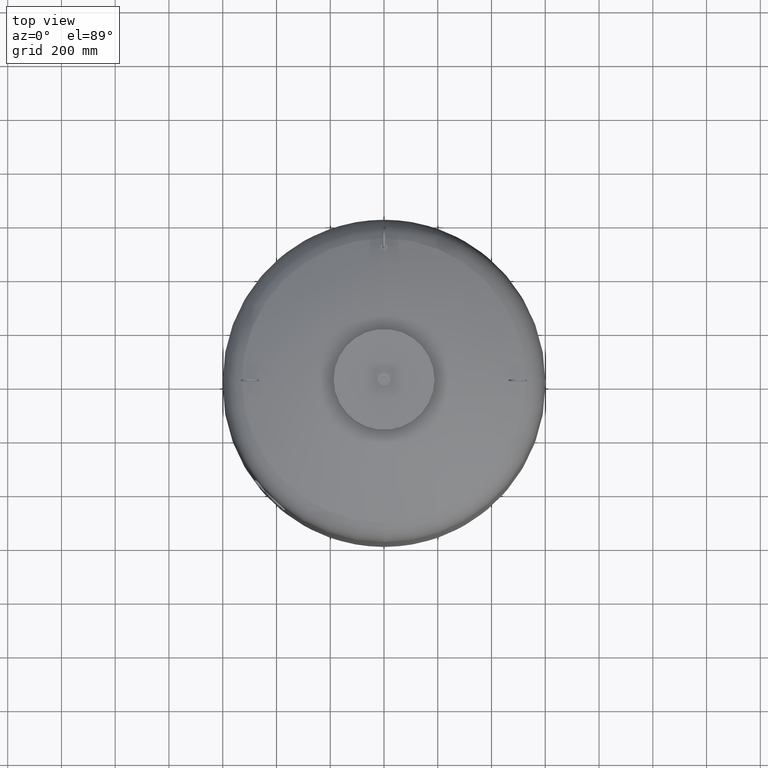
[diagram: clean part render]
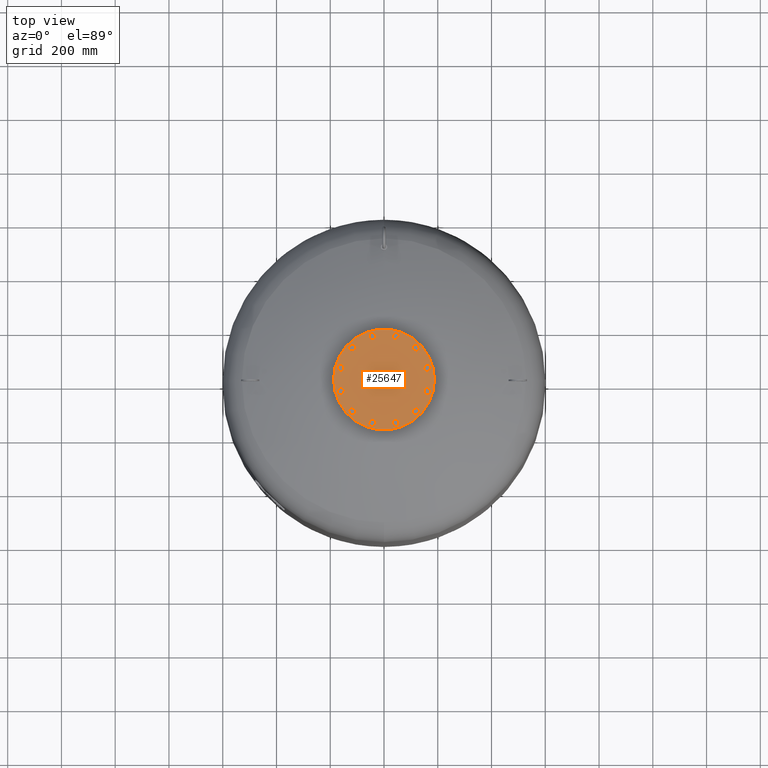
[diagram: same view with one face highlighted and labeled with its STEP entity id]
A machine part, top view. The second image highlights one B-rep face of the part: STEP entity #25647.
In plain terms, the highlighted planar face has unit normal (0, 0, 1).
Its self-contained STEP definition (entity closure, byte-faithful):
#17885=CARTESIAN_POINT('',(-187.500000000000000,0.0,2020.0));
#17886=VERTEX_POINT('',#17885);
#17902=CARTESIAN_POINT('',(187.500000000000000,-2.296137E-014,2020.0));
#17903=VERTEX_POINT('',#17902);
#17910=CARTESIAN_POINT('',(0.0,0.0,2020.0));
#17911=DIRECTION('',(0.0,0.0,-1.0));
#17912=DIRECTION('',(-1.0,0.0,0.0));
#17913=AXIS2_PLACEMENT_3D('',#17910,#17911,#17912);
#17914=CIRCLE('',#17913,187.500000000000000);
#17915=EDGE_CURVE('',#17903,#17886,#17914,.T.);
#23141=CARTESIAN_POINT('',(157.729139400922860,30.104983413641008,2020.0));
#23142=VERTEX_POINT('',#23141);
#23143=CARTESIAN_POINT('',(148.288440171855850,40.247625971983268,2020.0));
#23144=VERTEX_POINT('',#23143);
#23145=CARTESIAN_POINT('',(157.729139400922860,30.104983413641008,2020.0));
#23146=DIRECTION('',(-0.681323780155013,0.731982176419128,0.0));
#23147=VECTOR('',#23146,13.856406460551090);
#23148=LINE('',#23145,#23147);
#23149=EDGE_CURVE('',#23142,#23144,#23148,.T.);
#23181=CARTESIAN_POINT('',(171.233275132485970,33.209547496330110,2020.0));
#23182=VERTEX_POINT('',#23181);
#23183=CARTESIAN_POINT('',(171.233275132485970,33.209547496330110,2020.0));
#23184=DIRECTION('',(-0.974577049973894,-0.224052613607123,0.0));
#23185=VECTOR('',#23184,13.856406460551119);
#23186=LINE('',#23183,#23185);
#23187=EDGE_CURVE('',#23182,#23142,#23186,.T.);
#23212=CARTESIAN_POINT('',(175.296711634982050,46.456754137361422,2020.0));
#23213=VERTEX_POINT('',#23212);
#23214=CARTESIAN_POINT('',(175.296711634982050,46.456754137361422,2020.0));
#23215=DIRECTION('',(-0.293253269818881,-0.956034790026249,0.0));
#23216=VECTOR('',#23215,13.856406460551076);
#23217=LINE('',#23214,#23216);
#23218=EDGE_CURVE('',#23213,#23182,#23217,.T.);
#23243=CARTESIAN_POINT('',(152.351876674351930,53.494832613014587,2020.0));
#23244=VERTEX_POINT('',#23243);
#23245=CARTESIAN_POINT('',(148.288440171855850,40.247625971983268,2020.0));
#23246=DIRECTION('',(0.293253269818881,0.956034790026249,0.0));
#23247=VECTOR('',#23246,13.856406460551083);
#23248=LINE('',#23245,#23247);
#23249=EDGE_CURVE('',#23144,#23244,#23248,.T.);
#23274=CARTESIAN_POINT('',(165.856012405915040,56.599396695703689,2020.0));
#23275=VERTEX_POINT('',#23274);
#23276=CARTESIAN_POINT('',(152.351876674351930,53.494832613014587,2020.0));
#23277=DIRECTION('',(0.974577049973894,0.224052613607123,0.0));
#23278=VECTOR('',#23277,13.856406460551119);
#23279=LINE('',#23276,#23278);
#23280=EDGE_CURVE('',#23244,#23275,#23279,.T.);
#23305=CARTESIAN_POINT('',(165.856012405915040,56.599396695703689,2020.0));
#23306=DIRECTION('',(0.681323780155012,-0.731982176419129,0.0));
#23307=VECTOR('',#23306,13.856406460551096);
#23308=LINE('',#23305,#23307);
#23309=EDGE_CURVE('',#23275,#23213,#23308,.T.);
#23341=CARTESIAN_POINT('',(121.544949931435720,104.936250117183760,2020.0));
#23342=VERTEX_POINT('',#23341);
#23343=CARTESIAN_POINT('',(108.297743290404380,108.999686619679820,2020.0));
#23344=VERTEX_POINT('',#23343);
#23345=CARTESIAN_POINT('',(121.544949931435720,104.936250117183760,2020.0));
#23346=DIRECTION('',(-0.956034790026250,0.293253269818880,0.0));
#23347=VECTOR('',#23346,13.856406460551101);
#23348=LINE('',#23345,#23347);
#23349=EDGE_CURVE('',#23342,#23344,#23348,.T.);
#23381=CARTESIAN_POINT('',(131.687592489777960,114.376949346250780,2020.0));
#23382=VERTEX_POINT('',#23381);
#23383=CARTESIAN_POINT('',(131.687592489777960,114.376949346250780,2020.0));
#23384=DIRECTION('',(-0.731982176419127,-0.681323780155014,0.0));
#23385=VECTOR('',#23384,13.856406460551080);
#23386=LINE('',#23383,#23385);
#23387=EDGE_CURVE('',#23382,#23342,#23386,.T.);
#23412=CARTESIAN_POINT('',(128.583028407088880,127.881085077813880,2020.0));
#23413=VERTEX_POINT('',#23412);
#23414=CARTESIAN_POINT('',(128.583028407088880,127.881085077813880,2020.0));
#23415=DIRECTION('',(0.224052613607122,-0.974577049973894,0.0));
#23416=VECTOR('',#23415,13.856406460551099);
#23417=LINE('',#23414,#23416);
#23418=EDGE_CURVE('',#23413,#23382,#23417,.T.);
#23443=CARTESIAN_POINT('',(105.193179207715300,122.503822351242900,2020.0));
#23444=VERTEX_POINT('',#23443);
#23445=CARTESIAN_POINT('',(108.297743290404380,108.999686619679820,2020.0));
#23446=DIRECTION('',(-0.224052613607122,0.974577049973894,0.0));
#23447=VECTOR('',#23446,13.856406460551087);
#23448=LINE('',#23445,#23447);
#23449=EDGE_CURVE('',#23344,#23444,#23448,.T.);
#23474=CARTESIAN_POINT('',(115.335821766057560,131.944521580309950,2020.0));
#23475=VERTEX_POINT('',#23474);
#23476=CARTESIAN_POINT('',(105.193179207715300,122.503822351242900,2020.0));
#23477=DIRECTION('',(0.731982176419127,0.681323780155014,0.0));
#23478=VECTOR('',#23477,13.856406460551121);
#23479=LINE('',#23476,#23478);
#23480=EDGE_CURVE('',#23444,#23475,#23479,.T.);
#23505=CARTESIAN_POINT('',(115.335821766057560,131.944521580309950,2020.0));
#23506=DIRECTION('',(0.956034790026249,-0.293253269818881,0.0));
#23507=VECTOR('',#23506,13.856406460551076);
#23508=LINE('',#23505,#23507);
#23509=EDGE_CURVE('',#23475,#23413,#23508,.T.);
#23541=CARTESIAN_POINT('',(52.792889283739193,151.649933345076730,2020.0));
#23542=VERTEX_POINT('',#23541);
#23543=CARTESIAN_POINT('',(39.288753552176118,148.545369262387680,2020.0));
#23544=VERTEX_POINT('',#23543);
#23545=CARTESIAN_POINT('',(52.792889283739193,151.649933345076730,2020.0));
#23546=DIRECTION('',(-0.974577049973894,-0.224052613607120,0.0));
#23547=VECTOR('',#23546,13.856406460551073);
#23548=LINE('',#23545,#23547);
#23549=EDGE_CURVE('',#23542,#23544,#23548,.T.);
#23581=CARTESIAN_POINT('',(56.856325786235274,164.897139986108100,2020.0));
#23582=VERTEX_POINT('',#23581);
#23583=CARTESIAN_POINT('',(56.856325786235274,164.897139986108100,2020.0));
#23584=DIRECTION('',(-0.293253269818881,-0.956034790026249,0.0));
#23585=VECTOR('',#23584,13.856406460551133);
#23586=LINE('',#23583,#23585);
#23587=EDGE_CURVE('',#23582,#23542,#23586,.T.);
#23612=CARTESIAN_POINT('',(47.415626557168267,175.039782544450330,2020.0));
#23613=VERTEX_POINT('',#23612);
#23614=CARTESIAN_POINT('',(47.415626557168267,175.039782544450330,2020.0));
#23615=DIRECTION('',(0.681323780155014,-0.731982176419128,0.0));
#23616=VECTOR('',#23615,13.856406460551069);
#23617=LINE('',#23614,#23616);
#23618=EDGE_CURVE('',#23613,#23582,#23617,.T.);
#23643=CARTESIAN_POINT('',(29.848054323109103,158.688011820729910,2020.0));
#23644=VERTEX_POINT('',#23643);
#23645=CARTESIAN_POINT('',(39.288753552176118,148.545369262387680,2020.0));
#23646=DIRECTION('',(-0.681323780155014,0.731982176419127,0.0));
#23647=VECTOR('',#23646,13.856406460551076);
#23648=LINE('',#23645,#23647);
#23649=EDGE_CURVE('',#23544,#23644,#23648,.T.);
#23674=CARTESIAN_POINT('',(33.911490825605156,171.935218461761250,2020.0));
#23675=VERTEX_POINT('',#23674);
#23676=CARTESIAN_POINT('',(29.848054323109103,158.688011820729910,2020.0));
#23677=DIRECTION('',(0.293253269818879,0.956034790026250,0.0));
#23678=VECTOR('',#23677,13.856406460551097);
#23679=LINE('',#23676,#23678);
#23680=EDGE_CURVE('',#23644,#23675,#23679,.T.);
#23705=CARTESIAN_POINT('',(33.911490825605156,171.935218461761250,2020.0));
#23706=DIRECTION('',(0.974577049973894,0.224052613607121,0.0));
#23707=VECTOR('',#23706,13.856406460551113);
#23708=LINE('',#23705,#23707);
#23709=EDGE_CURVE('',#23675,#23613,#23708,.T.);
#23741=CARTESIAN_POINT('',(-30.104983413641008,157.729139400922860,2020.0));
#23742=VERTEX_POINT('',#23741);
#23743=CARTESIAN_POINT('',(-40.247625971983268,148.288440171855850,2020.0));
#23744=VERTEX_POINT('',#23743);
#23745=CARTESIAN_POINT('',(-30.104983413641008,157.729139400922860,2020.0));
#23746=DIRECTION('',(-0.731982176419128,-0.681323780155013,0.0));
#23747=VECTOR('',#23746,13.856406460551090);
#23748=LINE('',#23745,#23747);
#23749=EDGE_CURVE('',#23742,#23744,#23748,.T.);
#23781=CARTESIAN_POINT('',(-33.209547496330110,171.233275132485970,2020.0));
#23782=VERTEX_POINT('',#23781);
#23783=CARTESIAN_POINT('',(-33.209547496330110,171.233275132485970,2020.0));
#23784=DIRECTION('',(0.224052613607123,-0.974577049973894,0.0));
#23785=VECTOR('',#23784,13.856406460551119);
#23786=LINE('',#23783,#23785);
#23787=EDGE_CURVE('',#23782,#23742,#23786,.T.);
#23812=CARTESIAN_POINT('',(-46.456754137361422,175.296711634982050,2020.0));
#23813=VERTEX_POINT('',#23812);
#23814=CARTESIAN_POINT('',(-46.456754137361422,175.296711634982050,2020.0));
#23815=DIRECTION('',(0.956034790026249,-0.293253269818881,0.0));
#23816=VECTOR('',#23815,13.856406460551076);
#23817=LINE('',#23814,#23816);
#23818=EDGE_CURVE('',#23813,#23782,#23817,.T.);
#23843=CARTESIAN_POINT('',(-53.494832613014587,152.351876674351930,2020.0));
#23844=VERTEX_POINT('',#23843);
#23845=CARTESIAN_POINT('',(-40.247625971983268,148.288440171855850,2020.0));
#23846=DIRECTION('',(-0.956034790026249,0.293253269818881,0.0));
#23847=VECTOR('',#23846,13.856406460551083);
#23848=LINE('',#23845,#23847);
#23849=EDGE_CURVE('',#23744,#23844,#23848,.T.);
#23874=CARTESIAN_POINT('',(-56.599396695703689,165.856012405915040,2020.0));
#23875=VERTEX_POINT('',#23874);
#23876=CARTESIAN_POINT('',(-53.494832613014587,152.351876674351930,2020.0));
#23877=DIRECTION('',(-0.224052613607123,0.974577049973894,0.0));
#23878=VECTOR('',#23877,13.856406460551119);
#23879=LINE('',#23876,#23878);
#23880=EDGE_CURVE('',#23844,#23875,#23879,.T.);
#23905=CARTESIAN_POINT('',(-56.599396695703689,165.856012405915040,2020.0));
#23906=DIRECTION('',(0.731982176419129,0.681323780155012,0.0));
#23907=VECTOR('',#23906,13.856406460551096);
#23908=LINE('',#23905,#23907);
#23909=EDGE_CURVE('',#23875,#23813,#23908,.T.);
#23941=CARTESIAN_POINT('',(-104.936250117183700,121.544949931435750,2020.0));
#23942=VERTEX_POINT('',#23941);
#23943=CARTESIAN_POINT('',(-108.999686619679760,108.297743290404440,2020.0));
#23944=VERTEX_POINT('',#23943);
#23945=CARTESIAN_POINT('',(-104.936250117183700,121.544949931435750,2020.0));
#23946=DIRECTION('',(-0.293253269818880,-0.956034790026249,0.0));
#23947=VECTOR('',#23946,13.856406460551073);
#23948=LINE('',#23945,#23947);
#23949=EDGE_CURVE('',#23942,#23944,#23948,.T.);
#23981=CARTESIAN_POINT('',(-114.376949346250730,131.687592489778010,2020.0));
#23982=VERTEX_POINT('',#23981);
#23983=CARTESIAN_POINT('',(-114.376949346250730,131.687592489778010,2020.0));
#23984=DIRECTION('',(0.681323780155013,-0.731982176419128,0.0));
#23985=VECTOR('',#23984,13.856406460551101);
#23986=LINE('',#23983,#23985);
#23987=EDGE_CURVE('',#23982,#23942,#23986,.T.);
#24012=CARTESIAN_POINT('',(-127.881085077813810,128.583028407088930,2020.0));
#24013=VERTEX_POINT('',#24012);
#24014=CARTESIAN_POINT('',(-127.881085077813810,128.583028407088930,2020.0));
#24015=DIRECTION('',(0.974577049973894,0.224052613607122,0.0));
#24016=VECTOR('',#24015,13.856406460551087);
#24017=LINE('',#24014,#24016);
#24018=EDGE_CURVE('',#24013,#23982,#24017,.T.);
#24043=CARTESIAN_POINT('',(-122.503822351242850,105.193179207715360,2020.0));
#24044=VERTEX_POINT('',#24043);
#24045=CARTESIAN_POINT('',(-108.999686619679760,108.297743290404440,2020.0));
#24046=DIRECTION('',(-0.974577049973894,-0.224052613607122,0.0));
#24047=VECTOR('',#24046,13.856406460551087);
#24048=LINE('',#24045,#24047);
#24049=EDGE_CURVE('',#23944,#24044,#24048,.T.);
#24074=CARTESIAN_POINT('',(-131.944521580309900,115.335821766057620,2020.0));
#24075=VERTEX_POINT('',#24074);
#24076=CARTESIAN_POINT('',(-122.503822351242850,105.193179207715360,2020.0));
#24077=DIRECTION('',(-0.681323780155014,0.731982176419127,0.0));
#24078=VECTOR('',#24077,13.856406460551121);
#24079=LINE('',#24076,#24078);
#24080=EDGE_CURVE('',#24044,#24075,#24079,.T.);
#24105=CARTESIAN_POINT('',(-131.944521580309900,115.335821766057620,2020.0));
#24106=DIRECTION('',(0.293253269818882,0.956034790026249,0.0));
#24107=VECTOR('',#24106,13.856406460551081);
#24108=LINE('',#24105,#24107);
#24109=EDGE_CURVE('',#24075,#24013,#24108,.T.);
#24141=CARTESIAN_POINT('',(-151.649933345076730,52.792889283739214,2020.0));
#24142=VERTEX_POINT('',#24141);
#24143=CARTESIAN_POINT('',(-148.545369262387650,39.288753552176125,2020.0));
#24144=VERTEX_POINT('',#24143);
#24145=CARTESIAN_POINT('',(-151.649933345076730,52.792889283739214,2020.0));
#24146=DIRECTION('',(0.224052613607122,-0.974577049973894,0.0));
#24147=VECTOR('',#24146,13.856406460551092);
#24148=LINE('',#24145,#24147);
#24149=EDGE_CURVE('',#24142,#24144,#24148,.T.);
#24181=CARTESIAN_POINT('',(-164.897139986108100,56.856325786235296,2020.0));
#24182=VERTEX_POINT('',#24181);
#24183=CARTESIAN_POINT('',(-164.897139986108100,56.856325786235296,2020.0));
#24184=DIRECTION('',(0.956034790026249,-0.293253269818881,0.0));
#24185=VECTOR('',#24184,13.856406460551133);
#24186=LINE('',#24183,#24185);
#24187=EDGE_CURVE('',#24182,#24142,#24186,.T.);
#24212=CARTESIAN_POINT('',(-175.039782544450300,47.415626557168260,2020.0));
#24213=VERTEX_POINT('',#24212);
#24214=CARTESIAN_POINT('',(-175.039782544450300,47.415626557168260,2020.0));
#24215=DIRECTION('',(0.731982176419126,0.681323780155016,0.0));
#24216=VECTOR('',#24215,13.856406460551069);
#24217=LINE('',#24214,#24216);
#24218=EDGE_CURVE('',#24213,#24182,#24217,.T.);
#24243=CARTESIAN_POINT('',(-158.688011820729910,29.848054323109110,2020.0));
#24244=VERTEX_POINT('',#24243);
#24245=CARTESIAN_POINT('',(-148.545369262387650,39.288753552176125,2020.0));
#24246=DIRECTION('',(-0.731982176419128,-0.681323780155013,0.0));
#24247=VECTOR('',#24246,13.856406460551096);
#24248=LINE('',#24245,#24247);
#24249=EDGE_CURVE('',#24144,#24244,#24248,.T.);
#24274=CARTESIAN_POINT('',(-171.935218461761250,33.911490825605171,2020.0));
#24275=VERTEX_POINT('',#24274);
#24276=CARTESIAN_POINT('',(-158.688011820729910,29.848054323109110,2020.0));
#24277=DIRECTION('',(-0.956034790026250,0.293253269818880,0.0));
#24278=VECTOR('',#24277,13.856406460551101);
#24279=LINE('',#24276,#24278);
#24280=EDGE_CURVE('',#24244,#24275,#24279,.T.);
#24305=CARTESIAN_POINT('',(-171.935218461761250,33.911490825605171,2020.0));
#24306=DIRECTION('',(-0.224052613607120,0.974577049973894,0.0));
#24307=VECTOR('',#24306,13.856406460551087);
#24308=LINE('',#24305,#24307);
#24309=EDGE_CURVE('',#24275,#24213,#24308,.T.);
#24341=CARTESIAN_POINT('',(-157.729139400922860,-30.104983413640987,2020.0));
#24342=VERTEX_POINT('',#24341);
#24343=CARTESIAN_POINT('',(-148.288440171855850,-40.247625971983247,2020.0));
#24344=VERTEX_POINT('',#24343);
#24345=CARTESIAN_POINT('',(-157.729139400922860,-30.104983413640987,2020.0));
#24346=DIRECTION('',(0.681323780155013,-0.731982176419128,0.0));
#24347=VECTOR('',#24346,13.856406460551090);
#24348=LINE('',#24345,#24347);
#24349=EDGE_CURVE('',#24342,#24344,#24348,.T.);
#24381=CARTESIAN_POINT('',(-171.233275132486000,-33.209547496330096,2020.0));
#24382=VERTEX_POINT('',#24381);
#24383=CARTESIAN_POINT('',(-171.233275132486000,-33.209547496330096,2020.0));
#24384=DIRECTION('',(0.974577049973894,0.224052613607123,0.0));
#24385=VECTOR('',#24384,13.856406460551147);
#24386=LINE('',#24383,#24385);
#24387=EDGE_CURVE('',#24382,#24342,#24386,.T.);
#24412=CARTESIAN_POINT('',(-175.296711634982050,-46.456754137361401,2020.0));
#24413=VERTEX_POINT('',#24412);
#24414=CARTESIAN_POINT('',(-175.296711634982050,-46.456754137361401,2020.0));
#24415=DIRECTION('',(0.293253269818880,0.956034790026250,0.0));
#24416=VECTOR('',#24415,13.856406460551062);
#24417=LINE('',#24414,#24416);
#24418=EDGE_CURVE('',#24413,#24382,#24417,.T.);
#24443=CARTESIAN_POINT('',(-152.351876674351960,-53.494832613014580,2020.0));
#24444=VERTEX_POINT('',#24443);
#24445=CARTESIAN_POINT('',(-148.288440171855850,-40.247625971983247,2020.0));
#24446=DIRECTION('',(-0.293253269818883,-0.956034790026249,0.0));
#24447=VECTOR('',#24446,13.856406460551106);
#24448=LINE('',#24445,#24447);
#24449=EDGE_CURVE('',#24344,#24444,#24448,.T.);
#24474=CARTESIAN_POINT('',(-165.856012405915070,-56.599396695703646,2020.0));
#24475=VERTEX_POINT('',#24474);
#24476=CARTESIAN_POINT('',(-152.351876674351960,-53.494832613014580,2020.0));
#24477=DIRECTION('',(-0.974577049973894,-0.224052613607121,0.0));
#24478=VECTOR('',#24477,13.856406460551110);
#24479=LINE('',#24476,#24478);
#24480=EDGE_CURVE('',#24444,#24475,#24479,.T.);
#24505=CARTESIAN_POINT('',(-165.856012405915070,-56.599396695703646,2020.0));
#24506=DIRECTION('',(-0.681323780155012,0.731982176419129,0.0));
#24507=VECTOR('',#24506,13.856406460551062);
#24508=LINE('',#24505,#24507);
#24509=EDGE_CURVE('',#24475,#24413,#24508,.T.);
#24541=CARTESIAN_POINT('',(-121.544949931435750,-104.936250117183680,2020.0));
#24542=VERTEX_POINT('',#24541);
#24543=CARTESIAN_POINT('',(-108.297743290404440,-108.999686619679760,2020.0));
#24544=VERTEX_POINT('',#24543);
#24545=CARTESIAN_POINT('',(-121.544949931435750,-104.936250117183680,2020.0));
#24546=DIRECTION('',(0.956034790026249,-0.293253269818882,0.0));
#24547=VECTOR('',#24546,13.856406460551081);
#24548=LINE('',#24545,#24547);
#24549=EDGE_CURVE('',#24542,#24544,#24548,.T.);
#24581=CARTESIAN_POINT('',(-131.687592489778010,-114.376949346250730,2020.0));
#24582=VERTEX_POINT('',#24581);
#24583=CARTESIAN_POINT('',(-131.687592489778010,-114.376949346250730,2020.0));
#24584=DIRECTION('',(0.731982176419127,0.681323780155014,0.0));
#24585=VECTOR('',#24584,13.856406460551121);
#24586=LINE('',#24583,#24585);
#24587=EDGE_CURVE('',#24582,#24542,#24586,.T.);
#24612=CARTESIAN_POINT('',(-128.583028407088930,-127.881085077813790,2020.0));
#24613=VERTEX_POINT('',#24612);
#24614=CARTESIAN_POINT('',(-128.583028407088930,-127.881085077813790,2020.0));
#24615=DIRECTION('',(-0.224052613607122,0.974577049973894,0.0));
#24616=VECTOR('',#24615,13.856406460551071);
#24617=LINE('',#24614,#24616);
#24618=EDGE_CURVE('',#24613,#24582,#24617,.T.);
#24643=CARTESIAN_POINT('',(-105.193179207715360,-122.503822351242850,2020.0));
#24644=VERTEX_POINT('',#24643);
#24645=CARTESIAN_POINT('',(-108.297743290404440,-108.999686619679760,2020.0));
#24646=DIRECTION('',(0.224052613607122,-0.974577049973894,0.0));
#24647=VECTOR('',#24646,13.856406460551087);
#24648=LINE('',#24645,#24647);
#24649=EDGE_CURVE('',#24544,#24644,#24648,.T.);
#24674=CARTESIAN_POINT('',(-115.335821766057620,-131.944521580309900,2020.0));
#24675=VERTEX_POINT('',#24674);
#24676=CARTESIAN_POINT('',(-105.193179207715360,-122.503822351242850,2020.0));
#24677=DIRECTION('',(-0.731982176419127,-0.681323780155014,0.0));
#24678=VECTOR('',#24677,13.856406460551121);
#24679=LINE('',#24676,#24678);
#24680=EDGE_CURVE('',#24644,#24675,#24679,.T.);
#24705=CARTESIAN_POINT('',(-115.335821766057620,-131.944521580309900,2020.0));
#24706=DIRECTION('',(-0.956034790026249,0.293253269818883,0.0));
#24707=VECTOR('',#24706,13.856406460551085);
#24708=LINE('',#24705,#24707);
#24709=EDGE_CURVE('',#24675,#24613,#24708,.T.);
#24741=CARTESIAN_POINT('',(-52.792889283739228,-151.649933345076730,2020.0));
#24742=VERTEX_POINT('',#24741);
#24743=CARTESIAN_POINT('',(-39.288753552176132,-148.545369262387680,2020.0));
#24744=VERTEX_POINT('',#24743);
#24745=CARTESIAN_POINT('',(-52.792889283739228,-151.649933345076730,2020.0));
#24746=DIRECTION('',(0.974577049973894,0.224052613607120,0.0));
#24747=VECTOR('',#24746,13.856406460551094);
#24748=LINE('',#24745,#24747);
#24749=EDGE_CURVE('',#24742,#24744,#24748,.T.);
#24781=CARTESIAN_POINT('',(-56.856325786235296,-164.897139986108100,2020.0));
#24782=VERTEX_POINT('',#24781);
#24783=CARTESIAN_POINT('',(-56.856325786235296,-164.897139986108100,2020.0));
#24784=DIRECTION('',(0.293253269818880,0.956034790026250,0.0));
#24785=VECTOR('',#24784,13.856406460551129);
#24786=LINE('',#24783,#24785);
#24787=EDGE_CURVE('',#24782,#24742,#24786,.T.);
#24812=CARTESIAN_POINT('',(-47.415626557168281,-175.039782544450300,2020.0));
#24813=VERTEX_POINT('',#24812);
#24814=CARTESIAN_POINT('',(-47.415626557168281,-175.039782544450300,2020.0));
#24815=DIRECTION('',(-0.681323780155015,0.731982176419126,0.0));
#24816=VECTOR('',#24815,13.856406460551055);
#24817=LINE('',#24814,#24816);
#24818=EDGE_CURVE('',#24813,#24782,#24817,.T.);
#24843=CARTESIAN_POINT('',(-29.848054323109121,-158.688011820729910,2020.0));
#24844=VERTEX_POINT('',#24843);
#24845=CARTESIAN_POINT('',(-39.288753552176132,-148.545369262387680,2020.0));
#24846=DIRECTION('',(0.681323780155014,-0.731982176419127,0.0));
#24847=VECTOR('',#24846,13.856406460551073);
#24848=LINE('',#24845,#24847);
#24849=EDGE_CURVE('',#24744,#24844,#24848,.T.);
#24874=CARTESIAN_POINT('',(-33.911490825605199,-171.935218461761280,2020.0));
#24875=VERTEX_POINT('',#24874);
#24876=CARTESIAN_POINT('',(-29.848054323109121,-158.688011820729910,2020.0));
#24877=DIRECTION('',(-0.293253269818880,-0.956034790026249,0.0));
#24878=VECTOR('',#24877,13.856406460551133);
#24879=LINE('',#24876,#24878);
#24880=EDGE_CURVE('',#24844,#24875,#24879,.T.);
#24905=CARTESIAN_POINT('',(-33.911490825605199,-171.935218461761280,2020.0));
#24906=DIRECTION('',(-0.974577049973895,-0.224052613607118,0.0));
#24907=VECTOR('',#24906,13.856406460551074);
#24908=LINE('',#24905,#24907);
#24909=EDGE_CURVE('',#24875,#24813,#24908,.T.);
#24941=CARTESIAN_POINT('',(30.104983413640952,-157.729139400922890,2020.0));
#24942=VERTEX_POINT('',#24941);
#24943=CARTESIAN_POINT('',(40.247625971983211,-148.288440171855880,2020.0));
#24944=VERTEX_POINT('',#24943);
#24945=CARTESIAN_POINT('',(30.104983413640952,-157.729139400922890,2020.0));
#24946=DIRECTION('',(0.731982176419128,0.681323780155013,0.0));
#24947=VECTOR('',#24946,13.856406460551090);
#24948=LINE('',#24945,#24947);
#24949=EDGE_CURVE('',#24942,#24944,#24948,.T.);
#24981=CARTESIAN_POINT('',(33.209547496330039,-171.233275132486000,2020.0));
#24982=VERTEX_POINT('',#24981);
#24983=CARTESIAN_POINT('',(33.209547496330039,-171.233275132486000,2020.0));
#24984=DIRECTION('',(-0.224052613607122,0.974577049973894,0.0));
#24985=VECTOR('',#24984,13.856406460551115);
#24986=LINE('',#24983,#24985);
#24987=EDGE_CURVE('',#24982,#24942,#24986,.T.);
#25012=CARTESIAN_POINT('',(46.456754137361351,-175.296711634982070,2020.0));
#25013=VERTEX_POINT('',#25012);
#25014=CARTESIAN_POINT('',(46.456754137361351,-175.296711634982070,2020.0));
#25015=DIRECTION('',(-0.956034790026249,0.293253269818881,0.0));
#25016=VECTOR('',#25015,13.856406460551076);
#25017=LINE('',#25014,#25016);
#25018=EDGE_CURVE('',#25013,#24982,#25017,.T.);
#25043=CARTESIAN_POINT('',(53.494832613014523,-152.351876674351960,2020.0));
#25044=VERTEX_POINT('',#25043);
#25045=CARTESIAN_POINT('',(40.247625971983211,-148.288440171855880,2020.0));
#25046=DIRECTION('',(0.956034790026249,-0.293253269818881,0.0));
#25047=VECTOR('',#25046,13.856406460551076);
#25048=LINE('',#25045,#25047);
#25049=EDGE_CURVE('',#24944,#25044,#25048,.T.);
#25074=CARTESIAN_POINT('',(56.599396695703625,-165.856012405915070,2020.0));
#25075=VERTEX_POINT('',#25074);
#25076=CARTESIAN_POINT('',(53.494832613014523,-152.351876674351960,2020.0));
#25077=DIRECTION('',(0.224052613607123,-0.974577049973894,0.0));
#25078=VECTOR('',#25077,13.856406460551119);
#25079=LINE('',#25076,#25078);
#25080=EDGE_CURVE('',#25044,#25075,#25079,.T.);
#25105=CARTESIAN_POINT('',(56.599396695703625,-165.856012405915070,2020.0));
#25106=DIRECTION('',(-0.731982176419129,-0.681323780155012,0.0));
#25107=VECTOR('',#25106,13.856406460551101);
#25108=LINE('',#25105,#25107);
#25109=EDGE_CURVE('',#25075,#25013,#25108,.T.);
#25141=CARTESIAN_POINT('',(104.936250117183660,-121.544949931435800,2020.0));
#25142=VERTEX_POINT('',#25141);
#25143=CARTESIAN_POINT('',(108.999686619679750,-108.297743290404470,2020.0));
#25144=VERTEX_POINT('',#25143);
#25145=CARTESIAN_POINT('',(104.936250117183660,-121.544949931435800,2020.0));
#25146=DIRECTION('',(0.293253269818882,0.956034790026249,0.0));
#25147=VECTOR('',#25146,13.856406460551094);
#25148=LINE('',#25145,#25147);
#25149=EDGE_CURVE('',#25142,#25144,#25148,.T.);
#25181=CARTESIAN_POINT('',(114.376949346250710,-131.687592489778040,2020.0));
#25182=VERTEX_POINT('',#25181);
#25183=CARTESIAN_POINT('',(114.376949346250710,-131.687592489778040,2020.0));
#25184=DIRECTION('',(-0.681323780155015,0.731982176419126,0.0));
#25185=VECTOR('',#25184,13.856406460551110);
#25186=LINE('',#25183,#25185);
#25187=EDGE_CURVE('',#25182,#25142,#25186,.T.);
#25212=CARTESIAN_POINT('',(127.881085077813760,-128.583028407088960,2020.0));
#25213=VERTEX_POINT('',#25212);
#25214=CARTESIAN_POINT('',(127.881085077813760,-128.583028407088960,2020.0));
#25215=DIRECTION('',(-0.974577049973894,-0.224052613607122,0.0));
#25216=VECTOR('',#25215,13.856406460551058);
#25217=LINE('',#25214,#25216);
#25218=EDGE_CURVE('',#25213,#25182,#25217,.T.);
#25243=CARTESIAN_POINT('',(122.503822351242830,-105.193179207715390,2020.0));
#25244=VERTEX_POINT('',#25243);
#25245=CARTESIAN_POINT('',(108.999686619679750,-108.297743290404470,2020.0));
#25246=DIRECTION('',(0.974577049973894,0.224052613607122,0.0));
#25247=VECTOR('',#25246,13.856406460551087);
#25248=LINE('',#25245,#25247);
#25249=EDGE_CURVE('',#25144,#25244,#25248,.T.);
#25274=CARTESIAN_POINT('',(131.944521580309870,-115.335821766057650,2020.0));
#25275=VERTEX_POINT('',#25274);
#25276=CARTESIAN_POINT('',(122.503822351242830,-105.193179207715390,2020.0));
#25277=DIRECTION('',(0.681323780155014,-0.731982176419127,0.0));
#25278=VECTOR('',#25277,13.856406460551110);
#25279=LINE('',#25276,#25278);
#25280=EDGE_CURVE('',#25244,#25275,#25279,.T.);
#25305=CARTESIAN_POINT('',(131.944521580309870,-115.335821766057650,2020.0));
#25306=DIRECTION('',(-0.293253269818883,-0.956034790026249,0.0));
#25307=VECTOR('',#25306,13.856406460551085);
#25308=LINE('',#25305,#25307);
#25309=EDGE_CURVE('',#25275,#25213,#25308,.T.);
#25341=CARTESIAN_POINT('',(151.649933345076730,-52.792889283739228,2020.0));
#25342=VERTEX_POINT('',#25341);
#25343=CARTESIAN_POINT('',(148.545369262387650,-39.288753552176139,2020.0));
#25344=VERTEX_POINT('',#25343);
#25345=CARTESIAN_POINT('',(151.649933345076730,-52.792889283739228,2020.0));
#25346=DIRECTION('',(-0.224052613607122,0.974577049973894,0.0));
#25347=VECTOR('',#25346,13.856406460551092);
#25348=LINE('',#25345,#25347);
#25349=EDGE_CURVE('',#25342,#25344,#25348,.T.);
#25381=CARTESIAN_POINT('',(164.897139986108070,-56.856325786235303,2020.0));
#25382=VERTEX_POINT('',#25381);
#25383=CARTESIAN_POINT('',(164.897139986108070,-56.856325786235303,2020.0));
#25384=DIRECTION('',(-0.956034790026249,0.293253269818881,0.0));
#25385=VECTOR('',#25384,13.856406460551105);
#25386=LINE('',#25383,#25385);
#25387=EDGE_CURVE('',#25382,#25342,#25386,.T.);
#25412=CARTESIAN_POINT('',(175.039782544450300,-47.415626557168295,2020.0));
#25413=VERTEX_POINT('',#25412);
#25414=CARTESIAN_POINT('',(175.039782544450300,-47.415626557168295,2020.0));
#25415=DIRECTION('',(-0.731982176419128,-0.681323780155014,0.0));
#25416=VECTOR('',#25415,13.856406460551069);
#25417=LINE('',#25414,#25416);
#25418=EDGE_CURVE('',#25413,#25382,#25417,.T.);
#25443=CARTESIAN_POINT('',(158.688011820729910,-29.848054323109132,2020.0));
#25444=VERTEX_POINT('',#25443);
#25445=CARTESIAN_POINT('',(148.545369262387650,-39.288753552176139,2020.0));
#25446=DIRECTION('',(0.731982176419128,0.681323780155013,0.0));
#25447=VECTOR('',#25446,13.856406460551090);
#25448=LINE('',#25445,#25447);
#25449=EDGE_CURVE('',#25344,#25444,#25448,.T.);
#25474=CARTESIAN_POINT('',(171.935218461761250,-33.911490825605206,2020.0));
#25475=VERTEX_POINT('',#25474);
#25476=CARTESIAN_POINT('',(158.688011820729910,-29.848054323109132,2020.0));
#25477=DIRECTION('',(0.956034790026249,-0.293253269818881,0.0));
#25478=VECTOR('',#25477,13.856406460551105);
#25479=LINE('',#25476,#25478);
#25480=EDGE_CURVE('',#25444,#25475,#25479,.T.);
#25505=CARTESIAN_POINT('',(171.935218461761250,-33.911490825605206,2020.0));
#25506=DIRECTION('',(0.224052613607120,-0.974577049973894,0.0));
#25507=VECTOR('',#25506,13.856406460551087);
#25508=LINE('',#25505,#25507);
#25509=EDGE_CURVE('',#25475,#25413,#25508,.T.);
#25536=CARTESIAN_POINT('',(-93.750000000000000,-7.888609E-031,2020.0));
#25537=DIRECTION('',(0.0,0.0,1.0));
#25538=DIRECTION('',(0.0,1.0,0.0));
#25539=AXIS2_PLACEMENT_3D('',#25536,#25537,#25538);
#25540=PLANE('',#25539);
#25541=CARTESIAN_POINT('',(0.0,0.0,2020.0));
#25542=DIRECTION('',(0.0,0.0,-1.0));
#25543=DIRECTION('',(-1.0,0.0,0.0));
#25544=AXIS2_PLACEMENT_3D('',#25541,#25542,#25543);
#25545=CIRCLE('',#25544,187.500000000000000);
#25546=EDGE_CURVE('',#17886,#17903,#25545,.T.);
#25547=ORIENTED_EDGE('',*,*,#25546,.F.);
#25548=ORIENTED_EDGE('',*,*,#17915,.F.);
#25549=EDGE_LOOP('',(#25547,#25548));
#25550=FACE_OUTER_BOUND('',#25549,.T.);
#25551=ORIENTED_EDGE('',*,*,#23149,.T.);
#25552=ORIENTED_EDGE('',*,*,#23249,.T.);
#25553=ORIENTED_EDGE('',*,*,#23280,.T.);
#25554=ORIENTED_EDGE('',*,*,#23309,.T.);
#25555=ORIENTED_EDGE('',*,*,#23218,.T.);
#25556=ORIENTED_EDGE('',*,*,#23187,.T.);
#25557=EDGE_LOOP('',(#25551,#25552,#25553,#25554,#25555,#25556));
#25558=FACE_BOUND('',#25557,.T.);
#25559=ORIENTED_EDGE('',*,*,#23349,.T.);
#25560=ORIENTED_EDGE('',*,*,#23449,.T.);
#25561=ORIENTED_EDGE('',*,*,#23480,.T.);
#25562=ORIENTED_EDGE('',*,*,#23509,.T.);
#25563=ORIENTED_EDGE('',*,*,#23418,.T.);
#25564=ORIENTED_EDGE('',*,*,#23387,.T.);
#25565=EDGE_LOOP('',(#25559,#25560,#25561,#25562,#25563,#25564));
#25566=FACE_BOUND('',#25565,.T.);
#25567=ORIENTED_EDGE('',*,*,#23549,.T.);
#25568=ORIENTED_EDGE('',*,*,#23649,.T.);
#25569=ORIENTED_EDGE('',*,*,#23680,.T.);
#25570=ORIENTED_EDGE('',*,*,#23709,.T.);
#25571=ORIENTED_EDGE('',*,*,#23618,.T.);
#25572=ORIENTED_EDGE('',*,*,#23587,.T.);
#25573=EDGE_LOOP('',(#25567,#25568,#25569,#25570,#25571,#25572));
#25574=FACE_BOUND('',#25573,.T.);
#25575=ORIENTED_EDGE('',*,*,#23749,.T.);
#25576=ORIENTED_EDGE('',*,*,#23849,.T.);
#25577=ORIENTED_EDGE('',*,*,#23880,.T.);
#25578=ORIENTED_EDGE('',*,*,#23909,.T.);
#25579=ORIENTED_EDGE('',*,*,#23818,.T.);
#25580=ORIENTED_EDGE('',*,*,#23787,.T.);
#25581=EDGE_LOOP('',(#25575,#25576,#25577,#25578,#25579,#25580));
#25582=FACE_BOUND('',#25581,.T.);
#25583=ORIENTED_EDGE('',*,*,#23949,.T.);
#25584=ORIENTED_EDGE('',*,*,#24049,.T.);
#25585=ORIENTED_EDGE('',*,*,#24080,.T.);
#25586=ORIENTED_EDGE('',*,*,#24109,.T.);
#25587=ORIENTED_EDGE('',*,*,#24018,.T.);
#25588=ORIENTED_EDGE('',*,*,#23987,.T.);
#25589=EDGE_LOOP('',(#25583,#25584,#25585,#25586,#25587,#25588));
#25590=FACE_BOUND('',#25589,.T.);
#25591=ORIENTED_EDGE('',*,*,#24149,.T.);
#25592=ORIENTED_EDGE('',*,*,#24249,.T.);
#25593=ORIENTED_EDGE('',*,*,#24280,.T.);
#25594=ORIENTED_EDGE('',*,*,#24309,.T.);
#25595=ORIENTED_EDGE('',*,*,#24218,.T.);
#25596=ORIENTED_EDGE('',*,*,#24187,.T.);
#25597=EDGE_LOOP('',(#25591,#25592,#25593,#25594,#25595,#25596));
#25598=FACE_BOUND('',#25597,.T.);
#25599=ORIENTED_EDGE('',*,*,#24349,.T.);
#25600=ORIENTED_EDGE('',*,*,#24449,.T.);
#25601=ORIENTED_EDGE('',*,*,#24480,.T.);
#25602=ORIENTED_EDGE('',*,*,#24509,.T.);
#25603=ORIENTED_EDGE('',*,*,#24418,.T.);
#25604=ORIENTED_EDGE('',*,*,#24387,.T.);
#25605=EDGE_LOOP('',(#25599,#25600,#25601,#25602,#25603,#25604));
#25606=FACE_BOUND('',#25605,.T.);
#25607=ORIENTED_EDGE('',*,*,#24549,.T.);
#25608=ORIENTED_EDGE('',*,*,#24649,.T.);
#25609=ORIENTED_EDGE('',*,*,#24680,.T.);
#25610=ORIENTED_EDGE('',*,*,#24709,.T.);
#25611=ORIENTED_EDGE('',*,*,#24618,.T.);
#25612=ORIENTED_EDGE('',*,*,#24587,.T.);
#25613=EDGE_LOOP('',(#25607,#25608,#25609,#25610,#25611,#25612));
#25614=FACE_BOUND('',#25613,.T.);
#25615=ORIENTED_EDGE('',*,*,#24749,.T.);
#25616=ORIENTED_EDGE('',*,*,#24849,.T.);
#25617=ORIENTED_EDGE('',*,*,#24880,.T.);
#25618=ORIENTED_EDGE('',*,*,#24909,.T.);
#25619=ORIENTED_EDGE('',*,*,#24818,.T.);
#25620=ORIENTED_EDGE('',*,*,#24787,.T.);
#25621=EDGE_LOOP('',(#25615,#25616,#25617,#25618,#25619,#25620));
#25622=FACE_BOUND('',#25621,.T.);
#25623=ORIENTED_EDGE('',*,*,#24949,.T.);
#25624=ORIENTED_EDGE('',*,*,#25049,.T.);
#25625=ORIENTED_EDGE('',*,*,#25080,.T.);
#25626=ORIENTED_EDGE('',*,*,#25109,.T.);
#25627=ORIENTED_EDGE('',*,*,#25018,.T.);
#25628=ORIENTED_EDGE('',*,*,#24987,.T.);
#25629=EDGE_LOOP('',(#25623,#25624,#25625,#25626,#25627,#25628));
#25630=FACE_BOUND('',#25629,.T.);
#25631=ORIENTED_EDGE('',*,*,#25149,.T.);
#25632=ORIENTED_EDGE('',*,*,#25249,.T.);
#25633=ORIENTED_EDGE('',*,*,#25280,.T.);
#25634=ORIENTED_EDGE('',*,*,#25309,.T.);
#25635=ORIENTED_EDGE('',*,*,#25218,.T.);
#25636=ORIENTED_EDGE('',*,*,#25187,.T.);
#25637=EDGE_LOOP('',(#25631,#25632,#25633,#25634,#25635,#25636));
#25638=FACE_BOUND('',#25637,.T.);
#25639=ORIENTED_EDGE('',*,*,#25349,.T.);
#25640=ORIENTED_EDGE('',*,*,#25449,.T.);
#25641=ORIENTED_EDGE('',*,*,#25480,.T.);
#25642=ORIENTED_EDGE('',*,*,#25509,.T.);
#25643=ORIENTED_EDGE('',*,*,#25418,.T.);
#25644=ORIENTED_EDGE('',*,*,#25387,.T.);
#25645=EDGE_LOOP('',(#25639,#25640,#25641,#25642,#25643,#25644));
#25646=FACE_BOUND('',#25645,.T.);
#25647=ADVANCED_FACE('',(#25550,#25558,#25566,#25574,#25582,#25590,#25598,#25606,#25614,#25622,#25630,#25638,#25646),#25540,.T.);